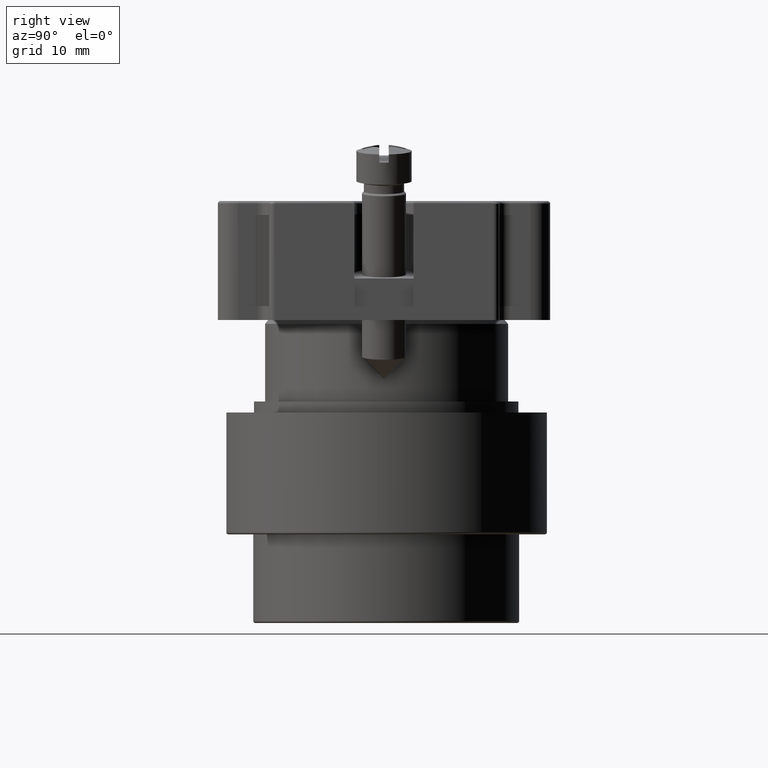
[diagram: clean part render]
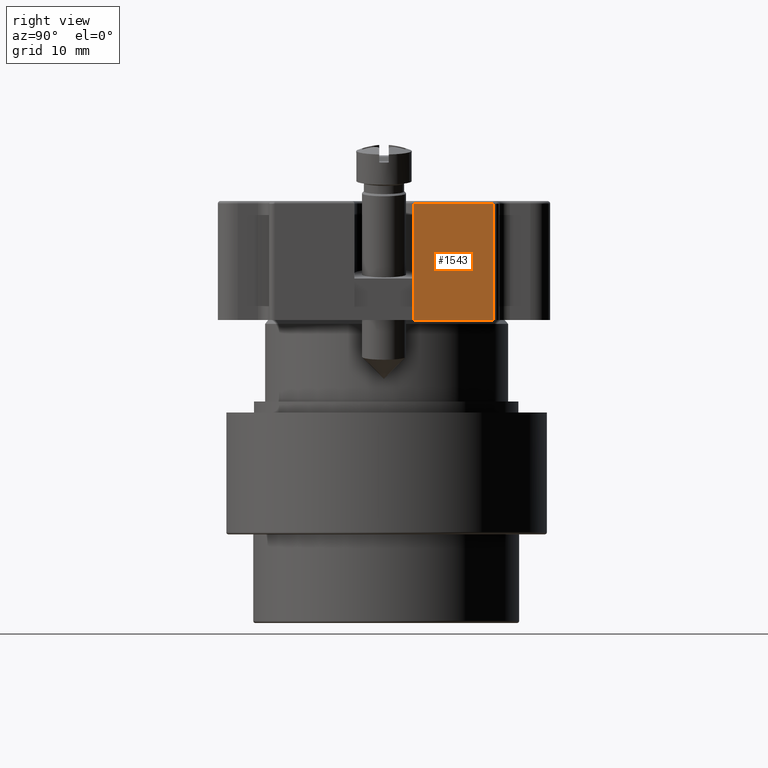
[diagram: same view with one face highlighted and labeled with its STEP entity id]
A machine part, right view. The second image highlights one B-rep face of the part: STEP entity #1543.
In plain terms, the highlighted planar face has unit normal (1, 0, 0).
Its self-contained STEP definition (entity closure, byte-faithful):
#151=CARTESIAN_POINT('',(20.617219691723896,20.017864828157556,10.500000000000000));
#152=VERTEX_POINT('',#151);
#170=CARTESIAN_POINT('',(20.617219691723896,12.817864828157555,10.500000000000000));
#171=VERTEX_POINT('',#170);
#179=CARTESIAN_POINT('',(20.617219691723896,12.817864828157555,10.500000000000000));
#180=DIRECTION('',(0.0,1.0,0.0));
#181=VECTOR('',#180,7.200000000000001);
#182=LINE('',#179,#181);
#183=EDGE_CURVE('',#171,#152,#182,.T.);
#1501=CARTESIAN_POINT('',(20.617219691723896,20.017864828157556,0.0));
#1502=VERTEX_POINT('',#1501);
#1503=CARTESIAN_POINT('',(20.617219691723896,20.017864828157556,0.0));
#1504=DIRECTION('',(0.0,0.0,1.0));
#1505=VECTOR('',#1504,10.500000000000000);
#1506=LINE('',#1503,#1505);
#1507=EDGE_CURVE('',#1502,#152,#1506,.T.);
#1520=CARTESIAN_POINT('',(20.617219691723896,20.017864828157556,0.0));
#1521=DIRECTION('',(1.0,0.0,0.0));
#1522=DIRECTION('',(0.0,0.0,-1.0));
#1523=AXIS2_PLACEMENT_3D('',#1520,#1521,#1522);
#1524=PLANE('',#1523);
#1525=ORIENTED_EDGE('',*,*,#183,.F.);
#1526=CARTESIAN_POINT('',(20.617219691723896,12.817864828157555,0.0));
#1527=VERTEX_POINT('',#1526);
#1528=CARTESIAN_POINT('',(20.617219691723896,12.817864828157555,0.0));
#1529=DIRECTION('',(0.0,0.0,1.0));
#1530=VECTOR('',#1529,10.500000000000000);
#1531=LINE('',#1528,#1530);
#1532=EDGE_CURVE('',#1527,#171,#1531,.T.);
#1533=ORIENTED_EDGE('',*,*,#1532,.F.);
#1534=CARTESIAN_POINT('',(20.617219691723896,12.817864828157555,0.0));
#1535=DIRECTION('',(0.0,1.0,0.0));
#1536=VECTOR('',#1535,7.200000000000001);
#1537=LINE('',#1534,#1536);
#1538=EDGE_CURVE('',#1527,#1502,#1537,.T.);
#1539=ORIENTED_EDGE('',*,*,#1538,.T.);
#1540=ORIENTED_EDGE('',*,*,#1507,.T.);
#1541=EDGE_LOOP('',(#1525,#1533,#1539,#1540));
#1542=FACE_OUTER_BOUND('',#1541,.T.);
#1543=ADVANCED_FACE('',(#1542),#1524,.T.);